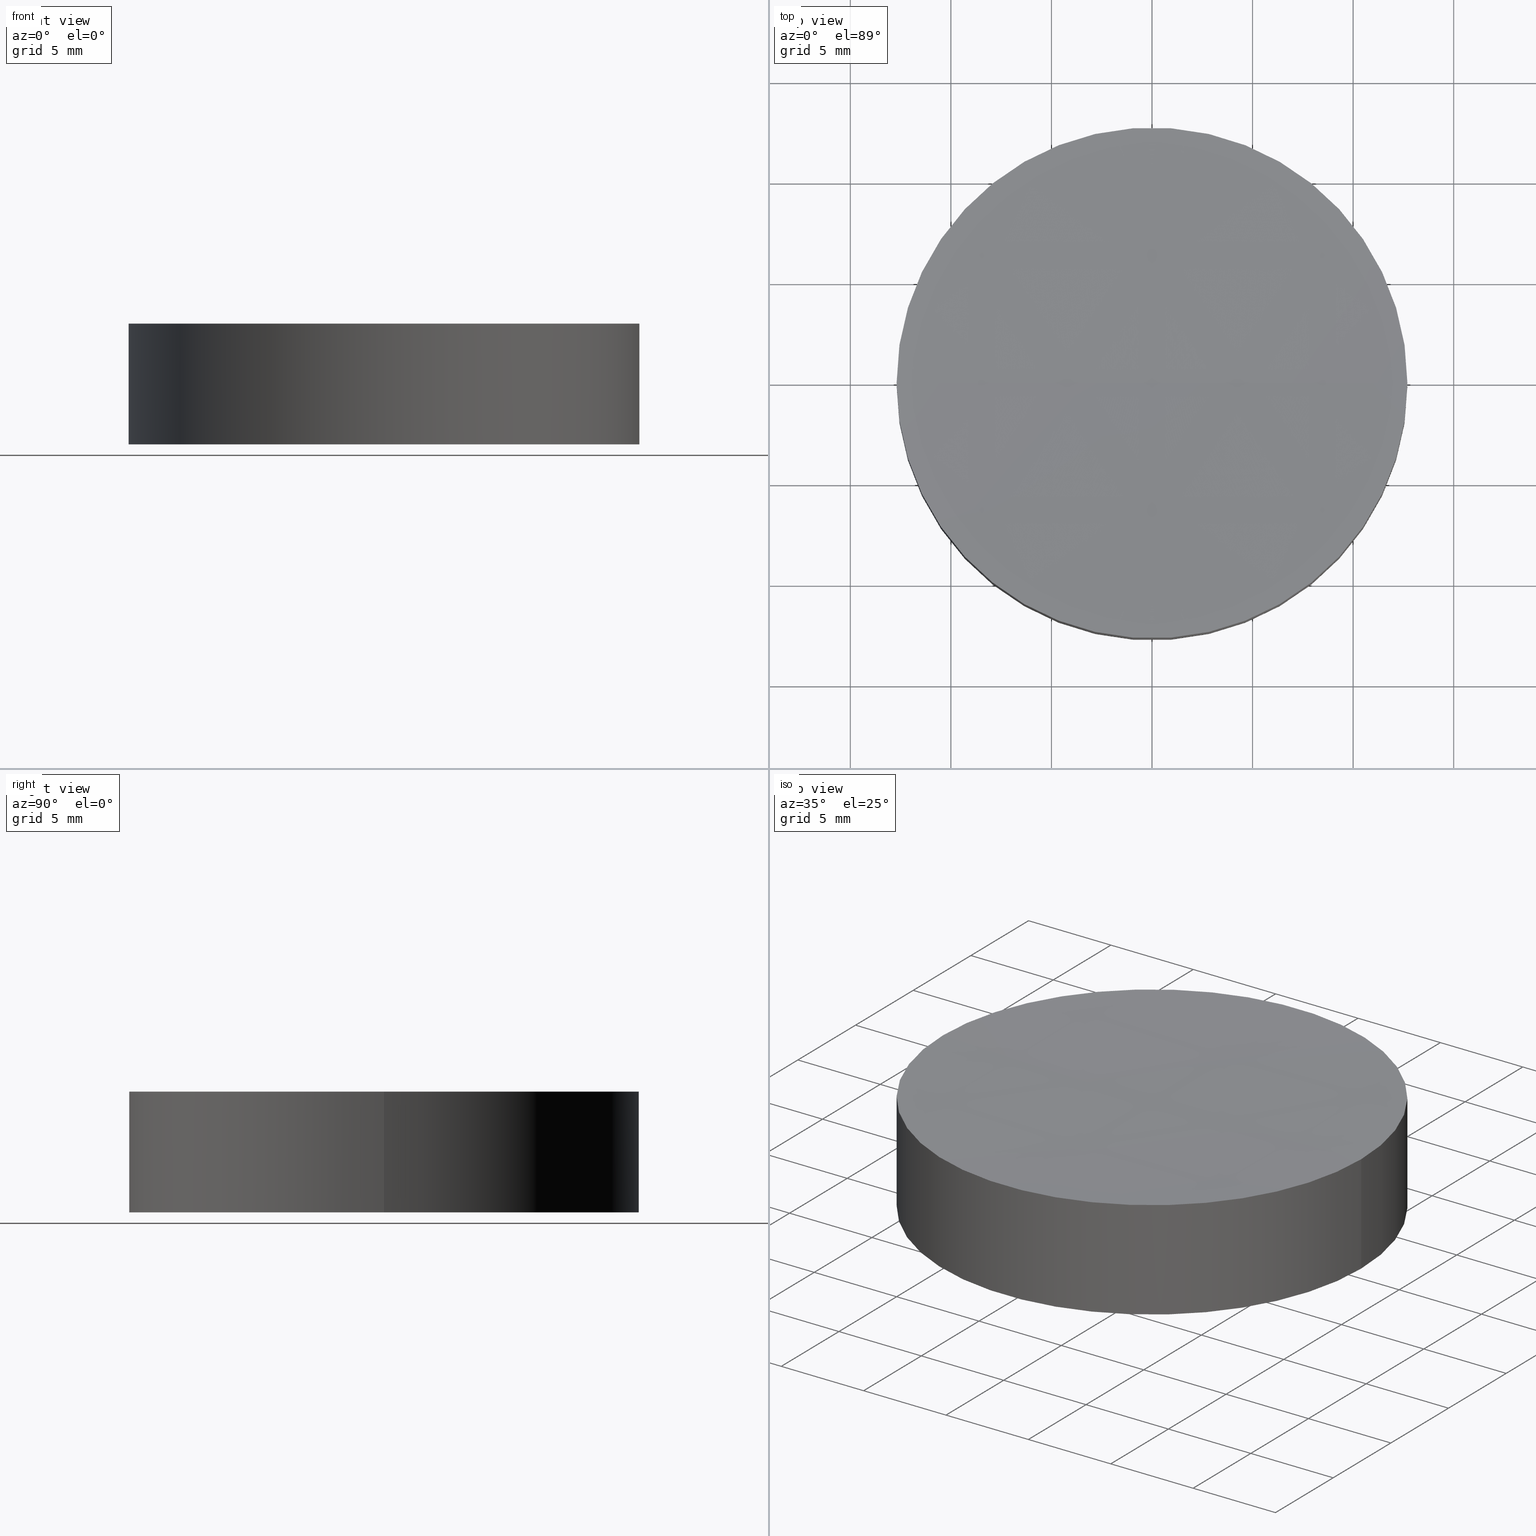
[diagram: canonical four-view strip — front | top / right | iso, engineering-drawing reading convention]
A machine part, canonical four-view strip (front | top / right | iso — engineering-drawing reading convention). The complete STEP part file that produces these views, byte-faithful:
ISO-10303-21;
HEADER;
FILE_DESCRIPTION (( 'STEP AP203' ),
    '1' );
FILE_NAME ('010-0206E_N-BK7_PCV_window.STEP',
    '2021-02-25T11:13:12',
    ( '' ),
    ( '' ),
    'SwSTEP 2.0',
    'SolidWorks 2019',
    '' );
FILE_SCHEMA (( 'CONFIG_CONTROL_DESIGN' ));
ENDSEC;

DATA;
#1 = DATE_AND_TIME ( #157, #26 ) ;
#2 = CIRCLE ( 'NONE', #113, 12.69999999999999929 ) ;
#3 = PERSON_AND_ORGANIZATION ( #42, #146 ) ;
#4 = APPROVAL_STATUS ( 'not_yet_approved' ) ;
#5 = PRODUCT_DEFINITION ( 'UNKNOWN', '', #102, #120 ) ;
#6 = PERSON_AND_ORGANIZATION ( #42, #146 ) ;
#7 = CARTESIAN_POINT ( 'NONE',  ( 3.816391647148975608E-14, 0.000000000000000000, 6.000000000000005329 ) ) ;
#8 = CARTESIAN_POINT ( 'NONE',  ( -12.69999999999999929, 0.000000000000000000, 0.000000000000000000 ) ) ;
#9 = VERTEX_POINT ( 'NONE', #39 ) ;
#10 = ADVANCED_BREP_SHAPE_REPRESENTATION ( '010-0206E_N-BK7_PCV_window', ( #160, #193 ), #140 ) ;
#11 = AXIS2_PLACEMENT_3D ( 'NONE', #60, #43, #200 ) ;
#12 = DIRECTION ( 'NONE',  ( 1.000000000000000000, 0.000000000000000000, 0.000000000000000000 ) ) ;
#13 = CARTESIAN_POINT ( 'NONE',  ( 0.000000000000000000, 0.000000000000000000, 0.000000000000000000 ) ) ;
#14 = CARTESIAN_POINT ( 'NONE',  ( 3.816391647148975608E-14, 0.000000000000000000, 305.7310627879599565 ) ) ;
#15 = PERSON_AND_ORGANIZATION_ROLE ( 'creator' ) ;
#16 = CALENDAR_DATE ( 2021, 25, 2 ) ;
#17 = CLOSED_SHELL ( 'NONE', ( #54, #169, #164, #198, #191 ) ) ;
#18 = PERSON_AND_ORGANIZATION ( #42, #146 ) ;
#19 = EDGE_CURVE ( 'NONE', #165, #74, #125, .T. ) ;
#20 = CARTESIAN_POINT ( 'NONE',  ( -12.69999999999999929, 0.000000000000000000, 6.000000000000000000 ) ) ;
#21 = CARTESIAN_POINT ( 'NONE',  ( 0.000000000000000000, 0.000000000000000000, 0.000000000000000000 ) ) ;
#22 = APPLICATION_CONTEXT ( 'configuration controlled 3d designs of mechanical parts and assemblies' ) ;
#23 = ORIENTED_EDGE ( 'NONE', *, *, #94, .F. ) ;
#24 = CC_DESIGN_DATE_AND_TIME_ASSIGNMENT ( #1, #124, ( #5 ) ) ;
#25 = CARTESIAN_POINT ( 'NONE',  ( 3.816391647148975608E-14, 0.000000000000000000, 6.000000000000005329 ) ) ;
#26 = LOCAL_TIME ( 13, 13, 12.00000000000000000, #106 ) ;
#27 = CARTESIAN_POINT ( 'NONE',  ( 12.69999999999999929, 1.555301434917138433E-15, 0.000000000000000000 ) ) ;
#28 = AXIS2_PLACEMENT_3D ( 'NONE', #14, #122, #58 ) ;
#29 = SECURITY_CLASSIFICATION_LEVEL ( 'unclassified' ) ;
#30 = CALENDAR_DATE ( 2021, 25, 2 ) ;
#31 = AXIS2_PLACEMENT_3D ( 'NONE', #21, #110, #161 ) ;
#32 = SHAPE_DEFINITION_REPRESENTATION ( #33, #10 ) ;
#33 = PRODUCT_DEFINITION_SHAPE ( 'NONE', 'NONE',  #5 ) ;
#34 = FACE_OUTER_BOUND ( 'NONE', #83, .T. ) ;
#35 = DIRECTION ( 'NONE',  ( 0.000000000000000000, 0.000000000000000000, 1.000000000000000000 ) ) ;
#36 = APPROVAL_PERSON_ORGANIZATION ( #80, #128, #108 ) ;
#37 = DIRECTION ( 'NONE',  ( 0.000000000000000000, 0.000000000000000000, 1.000000000000000000 ) ) ;
#38 = EDGE_CURVE ( 'NONE', #165, #9, #180, .T. ) ;
#39 = CARTESIAN_POINT ( 'NONE',  ( 5.653361845870005354E-14, 0.000000000000000000, 5.731062787959984028 ) ) ;
#40 = CARTESIAN_POINT ( 'NONE',  ( 12.69999999999999929, 1.555301434917138433E-15, 6.000000000000000000 ) ) ;
#41 = VECTOR ( 'NONE', #101, 1000.000000000000000 ) ;
#42 = PERSON ( 'UNSPECIFIED', 'UNSPECIFIED', 'UNSPECIFIED', ('UNSPECIFIED'), ('UNSPECIFIED'), ('UNSPECIFIED') ) ;
#43 = DIRECTION ( 'NONE',  ( 0.000000000000000000, -1.000000000000000000, -0.000000000000000000 ) ) ;
#44 = UNCERTAINTY_MEASURE_WITH_UNIT (LENGTH_MEASURE( 1.000000000000000082E-05 ), #81, 'distance_accuracy_value', 'NONE');
#45 = EDGE_CURVE ( 'NONE', #74, #57, #50, .T. ) ;
#46 = LOCAL_TIME ( 13, 13, 12.00000000000000000, #172 ) ;
#47 = PERSON_AND_ORGANIZATION ( #42, #146 ) ;
#48 = COORDINATED_UNIVERSAL_TIME_OFFSET ( 2, 0, .AHEAD. ) ;
#49 = PERSON_AND_ORGANIZATION ( #42, #146 ) ;
#50 = LINE ( 'NONE', #20, #67 ) ;
#51 = DIRECTION ( 'NONE',  ( 1.000000000000000000, 0.000000000000000000, 0.000000000000000000 ) ) ;
#52 = CIRCLE ( 'NONE', #134, 12.69999999999978257 ) ;
#53 = EDGE_LOOP ( 'NONE', ( #182, #84, #73, #133 ) ) ;
#54 = ADVANCED_FACE ( 'NONE', ( #34 ), #144, .F. ) ;
#55 = ORIENTED_EDGE ( 'NONE', *, *, #127, .F. ) ;
#56 = CC_DESIGN_PERSON_AND_ORGANIZATION_ASSIGNMENT ( #3, #173, ( #102 ) ) ;
#57 = VERTEX_POINT ( 'NONE', #8 ) ;
#58 = DIRECTION ( 'NONE',  ( 1.000000000000000000, 1.224646799147353207E-16, 0.000000000000000000 ) ) ;
#59 = CARTESIAN_POINT ( 'NONE',  ( 0.000000000000000000, 0.000000000000000000, 6.000000000000000000 ) ) ;
#60 = CARTESIAN_POINT ( 'NONE',  ( 3.816391647148975608E-14, 0.000000000000000000, 305.7310627879599565 ) ) ;
#61 = CC_DESIGN_PERSON_AND_ORGANIZATION_ASSIGNMENT ( #47, #15, ( #5 ) ) ;
#62 = PRODUCT_RELATED_PRODUCT_CATEGORY ( 'detail', '', ( #159 ) ) ;
#63 = DIRECTION ( 'NONE',  ( 1.000000000000000000, 0.000000000000000000, 0.000000000000000000 ) ) ;
#64 = CC_DESIGN_APPROVAL ( #135, ( #5 ) ) ;
#65 = APPROVAL_PERSON_ORGANIZATION ( #68, #135, #109 ) ;
#66 = CALENDAR_DATE ( 2021, 25, 2 ) ;
#67 = VECTOR ( 'NONE', #96, 1000.000000000000000 ) ;
#68 = PERSON_AND_ORGANIZATION ( #42, #146 ) ;
#69 = DATE_AND_TIME ( #129, #46 ) ;
#70 = DATE_AND_TIME ( #16, #197 ) ;
#71 = CARTESIAN_POINT ( 'NONE',  ( 3.816391647148975608E-14, 0.000000000000000000, 305.7310627879599565 ) ) ;
#72 = CARTESIAN_POINT ( 'NONE',  ( -12.69999999999974527, 0.000000000000000000, 6.000000000000005329 ) ) ;
#73 = ORIENTED_EDGE ( 'NONE', *, *, #45, .T. ) ;
#74 = VERTEX_POINT ( 'NONE', #72 ) ;
#75 = FACE_OUTER_BOUND ( 'NONE', #53, .T. ) ;
#76 = CC_DESIGN_PERSON_AND_ORGANIZATION_ASSIGNMENT ( #6, #176, ( #159 ) ) ;
#77 = FACE_OUTER_BOUND ( 'NONE', #114, .T. ) ;
#78 = PERSON_AND_ORGANIZATION ( #42, #146 ) ;
#79 = CC_DESIGN_APPROVAL ( #115, ( #102 ) ) ;
#80 = PERSON_AND_ORGANIZATION ( #42, #146 ) ;
#81 =( LENGTH_UNIT ( ) NAMED_UNIT ( * ) SI_UNIT ( .MILLI., .METRE. ) );
#82 = EDGE_LOOP ( 'NONE', ( #116, #195, #147, #99 ) ) ;
#83 = EDGE_LOOP ( 'NONE', ( #55, #100, #194 ) ) ;
#84 = ORIENTED_EDGE ( 'NONE', *, *, #19, .T. ) ;
#85 = AXIS2_PLACEMENT_3D ( 'NONE', #71, #131, #132 ) ;
#86 = DIRECTION ( 'NONE',  ( 1.000000000000000000, 0.000000000000000000, 0.000000000000000000 ) ) ;
#87 = EDGE_CURVE ( 'NONE', #57, #181, #2, .T. ) ;
#88 = SPHERICAL_SURFACE ( 'NONE', #11, 300.0000000000000000 ) ;
#89 = DIRECTION ( 'NONE',  ( 0.000000000000000000, 0.000000000000000000, 1.000000000000000000 ) ) ;
#90 = COORDINATED_UNIVERSAL_TIME_OFFSET ( 2, 0, .AHEAD. ) ;
#91 = APPROVAL_DATE_TIME ( #93, #135 ) ;
#92 = AXIS2_PLACEMENT_3D ( 'NONE', #196, #178, #35 ) ;
#93 = DATE_AND_TIME ( #30, #121 ) ;
#94 = EDGE_CURVE ( 'NONE', #74, #9, #152, .T. ) ;
#95 = CC_DESIGN_DATE_AND_TIME_ASSIGNMENT ( #69, #130, ( #143 ) ) ;
#96 = DIRECTION ( 'NONE',  ( -0.000000000000000000, -0.000000000000000000, -1.000000000000000000 ) ) ;
#97 = APPLICATION_PROTOCOL_DEFINITION ( 'international standard', 'config_control_design', 1994, #148 ) ;
#98 = ORIENTED_EDGE ( 'NONE', *, *, #38, .T. ) ;
#99 = ORIENTED_EDGE ( 'NONE', *, *, #45, .F. ) ;
#100 = ORIENTED_EDGE ( 'NONE', *, *, #94, .T. ) ;
#101 = DIRECTION ( 'NONE',  ( -0.000000000000000000, -0.000000000000000000, -1.000000000000000000 ) ) ;
#102 = PRODUCT_DEFINITION_FORMATION_WITH_SPECIFIED_SOURCE ( 'ANY', '', #159, .NOT_KNOWN. ) ;
#103 = FACE_OUTER_BOUND ( 'NONE', #136, .T. ) ;
#104 = CC_DESIGN_SECURITY_CLASSIFICATION ( #143, ( #102 ) ) ;
#105 = PERSON_AND_ORGANIZATION_ROLE ( 'design_supplier' ) ;
#106 = COORDINATED_UNIVERSAL_TIME_OFFSET ( 2, 0, .AHEAD. ) ;
#107 = APPROVAL_STATUS ( 'not_yet_approved' ) ;
#108 = APPROVAL_ROLE ( '' ) ;
#109 = APPROVAL_ROLE ( '' ) ;
#110 = DIRECTION ( 'NONE',  ( 0.000000000000000000, 0.000000000000000000, 1.000000000000000000 ) ) ;
#111 = LOCAL_TIME ( 13, 13, 12.00000000000000000, #90 ) ;
#112 = CARTESIAN_POINT ( 'NONE',  ( 0.000000000000000000, 0.000000000000000000, 0.000000000000000000 ) ) ;
#113 = AXIS2_PLACEMENT_3D ( 'NONE', #145, #89, #63 ) ;
#114 = EDGE_LOOP ( 'NONE', ( #23, #149, #98 ) ) ;
#115 = APPROVAL ( #107, 'UNSPECIFIED' ) ;
#116 = ORIENTED_EDGE ( 'NONE', *, *, #127, .T. ) ;
#117 = DIRECTION ( 'NONE',  ( -0.000000000000000000, -0.000000000000000000, -1.000000000000000000 ) ) ;
#118 = AXIS2_PLACEMENT_3D ( 'NONE', #13, #171, #12 ) ;
#119 = DIRECTION ( 'NONE',  ( -1.000000000000000000, 0.000000000000000000, 0.000000000000000000 ) ) ;
#120 = DESIGN_CONTEXT ( 'detailed design', #22, 'design' ) ;
#121 = LOCAL_TIME ( 13, 13, 12.00000000000000000, #156 ) ;
#122 = DIRECTION ( 'NONE',  ( 1.224646799147353207E-16, -1.000000000000000000, 0.000000000000000000 ) ) ;
#123 = CC_DESIGN_APPROVAL ( #128, ( #143 ) ) ;
#124 = DATE_TIME_ROLE ( 'creation_date' ) ;
#125 = CIRCLE ( 'NONE', #141, 12.69999999999978257 ) ;
#126 = PERSON_AND_ORGANIZATION_ROLE ( 'classification_officer' ) ;
#127 = EDGE_CURVE ( 'NONE', #74, #165, #52, .T. ) ;
#128 = APPROVAL ( #190, 'UNSPECIFIED' ) ;
#129 = CALENDAR_DATE ( 2021, 25, 2 ) ;
#130 = DATE_TIME_ROLE ( 'classification_date' ) ;
#131 = DIRECTION ( 'NONE',  ( 0.000000000000000000, -1.000000000000000000, -0.000000000000000000 ) ) ;
#132 = DIRECTION ( 'NONE',  ( 1.000000000000000000, 0.000000000000000000, 0.000000000000000000 ) ) ;
#133 = ORIENTED_EDGE ( 'NONE', *, *, #87, .T. ) ;
#134 = AXIS2_PLACEMENT_3D ( 'NONE', #7, #153, #86 ) ;
#135 = APPROVAL ( #4, 'UNSPECIFIED' ) ;
#136 = EDGE_LOOP ( 'NONE', ( #163, #150 ) ) ;
#137 = DIRECTION ( 'NONE',  ( 1.000000000000000000, 0.000000000000000000, 0.000000000000000000 ) ) ;
#138 = CYLINDRICAL_SURFACE ( 'NONE', #158, 12.69999999999999929 ) ;
#139 = CYLINDRICAL_SURFACE ( 'NONE', #186, 12.69999999999999929 ) ;
#140 =( GEOMETRIC_REPRESENTATION_CONTEXT ( 3 ) GLOBAL_UNCERTAINTY_ASSIGNED_CONTEXT ( ( #44 ) ) GLOBAL_UNIT_ASSIGNED_CONTEXT ( ( #81, #179, #177 ) ) REPRESENTATION_CONTEXT ( 'NONE', 'WORKASPACE' ) );
#141 = AXIS2_PLACEMENT_3D ( 'NONE', #25, #151, #137 ) ;
#142 = APPLICATION_PROTOCOL_DEFINITION ( 'international standard', 'config_control_design', 1994, #22 ) ;
#143 = SECURITY_CLASSIFICATION ( '', '', #29 ) ;
#144 = SPHERICAL_SURFACE ( 'NONE', #85, 300.0000000000000000 ) ;
#145 = CARTESIAN_POINT ( 'NONE',  ( 0.000000000000000000, 0.000000000000000000, 0.000000000000000000 ) ) ;
#146 = ORGANIZATION ( 'UNSPECIFIED', 'UNSPECIFIED', '' ) ;
#147 = ORIENTED_EDGE ( 'NONE', *, *, #155, .T. ) ;
#148 = APPLICATION_CONTEXT ( 'configuration controlled 3d designs of mechanical parts and assemblies' ) ;
#149 = ORIENTED_EDGE ( 'NONE', *, *, #19, .F. ) ;
#150 = ORIENTED_EDGE ( 'NONE', *, *, #155, .F. ) ;
#151 = DIRECTION ( 'NONE',  ( -0.000000000000000000, -0.000000000000000000, -1.000000000000000000 ) ) ;
#152 = CIRCLE ( 'NONE', #28, 300.0000000000000000 ) ;
#153 = DIRECTION ( 'NONE',  ( -0.000000000000000000, -0.000000000000000000, -1.000000000000000000 ) ) ;
#154 = CARTESIAN_POINT ( 'NONE',  ( 0.000000000000000000, 0.000000000000000000, 6.000000000000000000 ) ) ;
#155 = EDGE_CURVE ( 'NONE', #181, #57, #167, .T. ) ;
#156 = COORDINATED_UNIVERSAL_TIME_OFFSET ( 2, 0, .AHEAD. ) ;
#157 = CALENDAR_DATE ( 2021, 25, 2 ) ;
#158 = AXIS2_PLACEMENT_3D ( 'NONE', #154, #187, #119 ) ;
#159 = PRODUCT ( '010-0206E_N-BK7_PCV_window', '010-0206E_N-BK7_PCV_window', '', ( #162 ) ) ;
#160 = MANIFOLD_SOLID_BREP ( 'Cut-Revolve1', #17 ) ;
#161 = DIRECTION ( 'NONE',  ( 1.000000000000000000, 0.000000000000000000, -0.000000000000000000 ) ) ;
#162 = MECHANICAL_CONTEXT ( 'NONE', #148, 'mechanical' ) ;
#163 = ORIENTED_EDGE ( 'NONE', *, *, #87, .F. ) ;
#164 = ADVANCED_FACE ( 'NONE', ( #75 ), #138, .T. ) ;
#165 = VERTEX_POINT ( 'NONE', #199 ) ;
#166 = DIRECTION ( 'NONE',  ( -1.000000000000000000, 0.000000000000000000, 0.000000000000000000 ) ) ;
#167 = CIRCLE ( 'NONE', #118, 12.69999999999999929 ) ;
#168 = FACE_OUTER_BOUND ( 'NONE', #82, .T. ) ;
#169 = ADVANCED_FACE ( 'NONE', ( #168 ), #139, .T. ) ;
#170 = CC_DESIGN_PERSON_AND_ORGANIZATION_ASSIGNMENT ( #49, #126, ( #143 ) ) ;
#171 = DIRECTION ( 'NONE',  ( 0.000000000000000000, 0.000000000000000000, 1.000000000000000000 ) ) ;
#172 = COORDINATED_UNIVERSAL_TIME_OFFSET ( 2, 0, .AHEAD. ) ;
#173 = PERSON_AND_ORGANIZATION_ROLE ( 'creator' ) ;
#174 = APPROVAL_ROLE ( '' ) ;
#175 = APPROVAL_DATE_TIME ( #70, #128 ) ;
#176 = PERSON_AND_ORGANIZATION_ROLE ( 'design_owner' ) ;
#177 =( NAMED_UNIT ( * ) SI_UNIT ( $, .STERADIAN. ) SOLID_ANGLE_UNIT ( ) );
#178 = DIRECTION ( 'NONE',  ( 0.000000000000000000, 1.000000000000000000, -0.000000000000000000 ) ) ;
#179 =( NAMED_UNIT ( * ) PLANE_ANGLE_UNIT ( ) SI_UNIT ( $, .RADIAN. ) );
#180 = CIRCLE ( 'NONE', #92, 300.0000000000000000 ) ;
#181 = VERTEX_POINT ( 'NONE', #27 ) ;
#182 = ORIENTED_EDGE ( 'NONE', *, *, #184, .F. ) ;
#183 = LINE ( 'NONE', #40, #41 ) ;
#184 = EDGE_CURVE ( 'NONE', #165, #181, #183, .T. ) ;
#185 = CC_DESIGN_PERSON_AND_ORGANIZATION_ASSIGNMENT ( #18, #105, ( #102 ) ) ;
#186 = AXIS2_PLACEMENT_3D ( 'NONE', #59, #117, #166 ) ;
#187 = DIRECTION ( 'NONE',  ( -0.000000000000000000, -0.000000000000000000, -1.000000000000000000 ) ) ;
#188 = APPROVAL_DATE_TIME ( #189, #115 ) ;
#189 = DATE_AND_TIME ( #66, #111 ) ;
#190 = APPROVAL_STATUS ( 'not_yet_approved' ) ;
#191 = ADVANCED_FACE ( 'NONE', ( #77 ), #88, .F. ) ;
#192 = PLANE ( 'NONE',  #31 ) ;
#193 = AXIS2_PLACEMENT_3D ( 'NONE', #112, #37, #51 ) ;
#194 = ORIENTED_EDGE ( 'NONE', *, *, #38, .F. ) ;
#195 = ORIENTED_EDGE ( 'NONE', *, *, #184, .T. ) ;
#196 = CARTESIAN_POINT ( 'NONE',  ( 3.816391647148975608E-14, 0.000000000000000000, 305.7310627879599565 ) ) ;
#197 = LOCAL_TIME ( 13, 13, 12.00000000000000000, #48 ) ;
#198 = ADVANCED_FACE ( 'NONE', ( #103 ), #192, .F. ) ;
#199 = CARTESIAN_POINT ( 'NONE',  ( 12.69999999999982165, 1.555301434917127783E-15, 6.000000000000005329 ) ) ;
#200 = DIRECTION ( 'NONE',  ( 1.000000000000000000, 0.000000000000000000, 0.000000000000000000 ) ) ;
#201 = APPROVAL_PERSON_ORGANIZATION ( #78, #115, #174 ) ;
ENDSEC;
END-ISO-10303-21;
